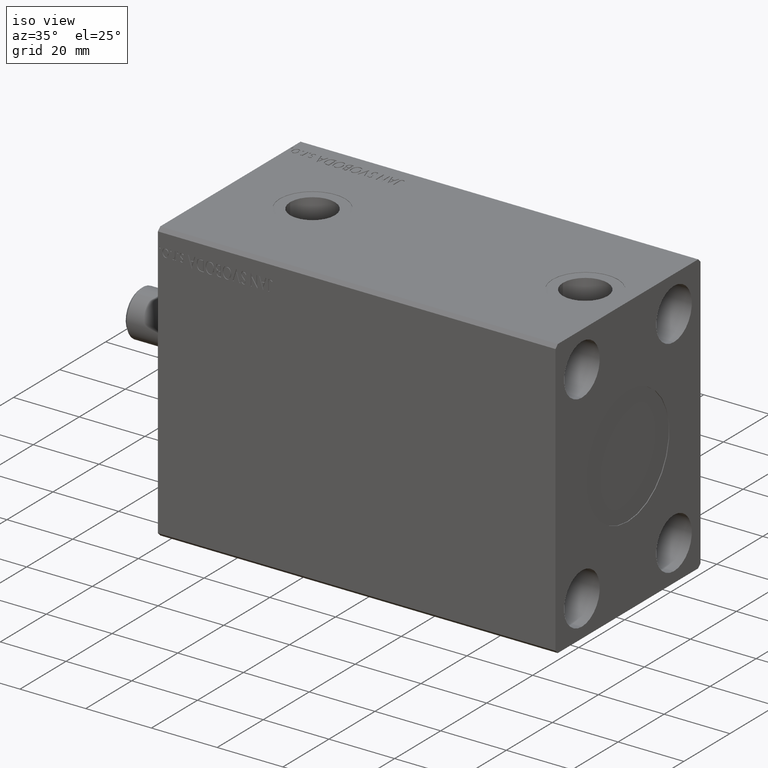
[diagram: clean part render]
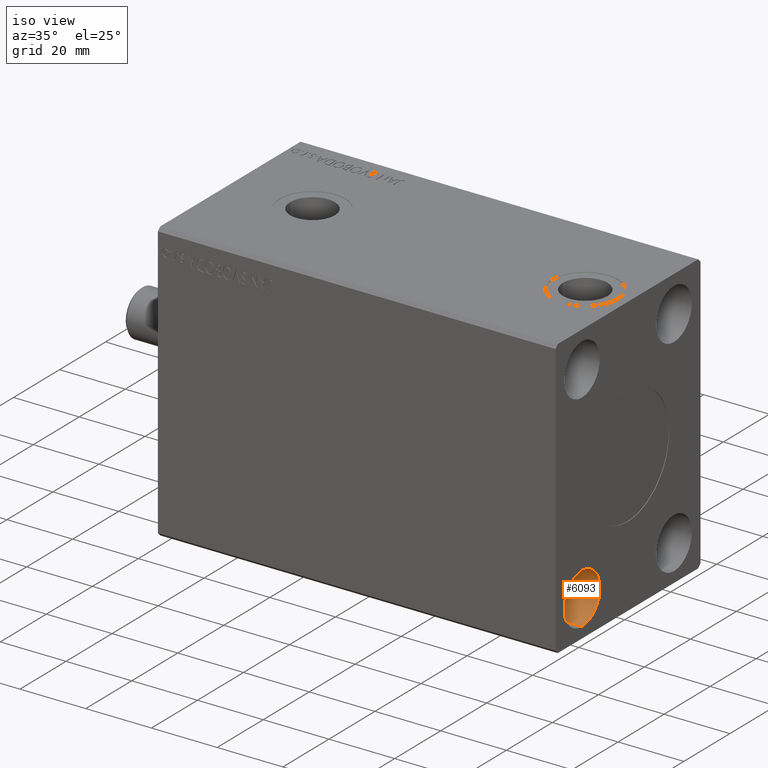
[diagram: same view with one face highlighted and labeled with its STEP entity id]
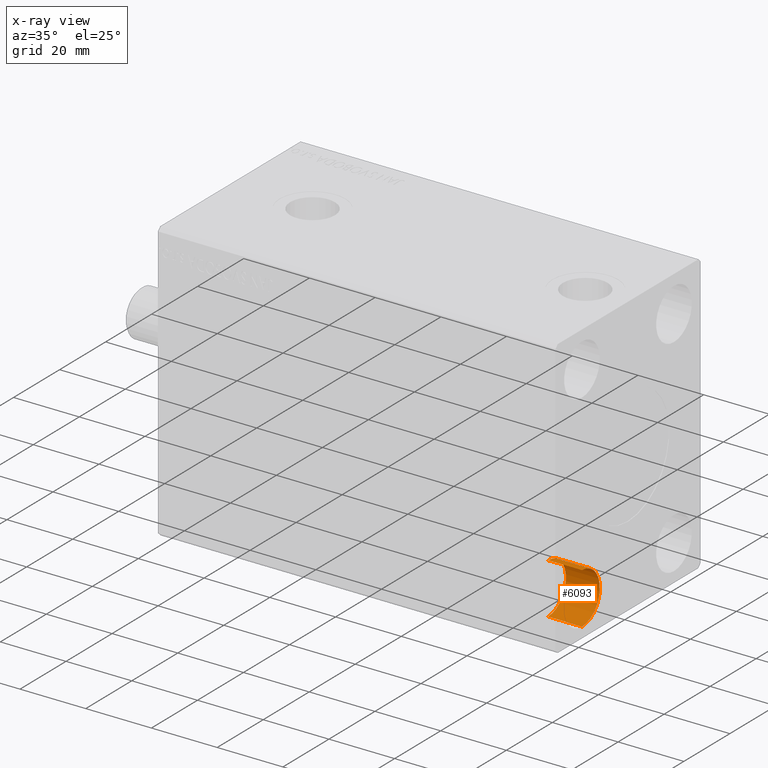
[diagram: x-ray of the same camera — body ghosted, the highlighted face saturated]
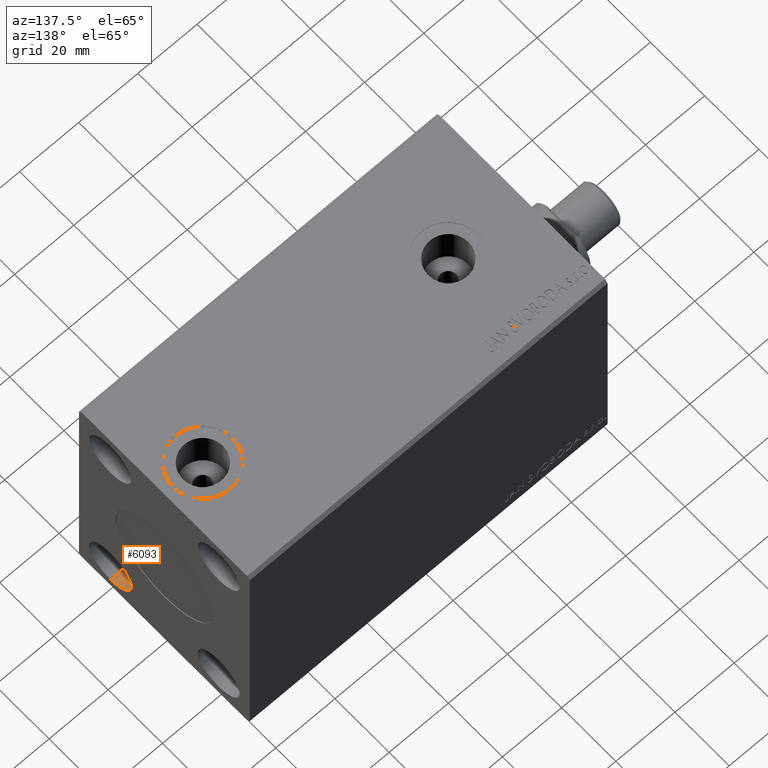
[diagram: same view with one face highlighted and labeled with its STEP entity id]
A machine part, iso view. The second image highlights one B-rep face of the part: STEP entity #6093.
The next image is the same camera in x-ray: the body ghosted, the highlighted face saturated — about 0% of this face is hidden behind the body in this view.
A second angle (auxiliary view) of the same face is appended — the face is thin or edge-on in the first view.
In plain terms, the highlighted cylindrical surface (edge-blend (fillet) strip) has radius 7.75 mm, axis along (1, 0, 0).
Its self-contained STEP definition (entity closure, byte-faithful):
#533 = EDGE_CURVE ( 'NONE', #19404, #16672, #11035, .T. ) ;
#1085 = CARTESIAN_POINT ( 'NONE',  ( 110.6699999999999875, -19.99999999999999645, -23.74999999999998579 ) ) ;
#1906 = VECTOR ( 'NONE', #21515, 1000.000000000000000 ) ;
#2566 = ORIENTED_EDGE ( 'NONE', *, *, #533, .T. ) ;
#4574 = FACE_OUTER_BOUND ( 'NONE', #41842, .T. ) ;
#5339 = CARTESIAN_POINT ( 'NONE',  ( 121.0000000000000000, -19.99999999999999645, -23.74999999999998579 ) ) ;
#6093 = ADVANCED_FACE ( 'NONE', ( #4574 ), #18481, .F. ) ;
#9075 = EDGE_CURVE ( 'NONE', #30782, #16672, #31773, .T. ) ;
#9591 = AXIS2_PLACEMENT_3D ( 'NONE', #17617, #14438, #35172 ) ;
#9775 = DIRECTION ( 'NONE',  ( 1.000000000000000000, -0.000000000000000000, -0.000000000000000000 ) ) ;
#10213 = CARTESIAN_POINT ( 'NONE',  ( 110.6699999999999875, -19.99999999999999645, -39.24999999999998579 ) ) ;
#11035 = CIRCLE ( 'NONE', #9591, 7.750000000000000000 ) ;
#11523 = ORIENTED_EDGE ( 'NONE', *, *, #22609, .F. ) ;
#11866 = CARTESIAN_POINT ( 'NONE',  ( 110.6699999999999875, -19.99999999999999645, -31.49999999999998579 ) ) ;
#14438 = DIRECTION ( 'NONE',  ( 1.000000000000000000, -0.000000000000000000, -0.000000000000000000 ) ) ;
#16672 = VERTEX_POINT ( 'NONE', #5339 ) ;
#17617 = CARTESIAN_POINT ( 'NONE',  ( 121.0000000000000000, -19.99999999999999645, -31.49999999999998579 ) ) ;
#17667 = VERTEX_POINT ( 'NONE', #22393 ) ;
#17761 = CIRCLE ( 'NONE', #32342, 7.750000000000000000 ) ;
#18481 = CYLINDRICAL_SURFACE ( 'NONE', #19177, 7.750000000000000000 ) ;
#19177 = AXIS2_PLACEMENT_3D ( 'NONE', #11866, #31926, #43118 ) ;
#19404 = VERTEX_POINT ( 'NONE', #39354 ) ;
#20248 = VECTOR ( 'NONE', #9775, 1000.000000000000000 ) ;
#20681 = DIRECTION ( 'NONE',  ( 0.000000000000000000, 0.000000000000000000, -1.000000000000000000 ) ) ;
#21515 = DIRECTION ( 'NONE',  ( 1.000000000000000000, -0.000000000000000000, -0.000000000000000000 ) ) ;
#22215 = ORIENTED_EDGE ( 'NONE', *, *, #36003, .T. ) ;
#22393 = CARTESIAN_POINT ( 'NONE',  ( 110.6699999999999875, -19.99999999999999645, -39.24999999999998579 ) ) ;
#22609 = EDGE_CURVE ( 'NONE', #17667, #30782, #17761, .T. ) ;
#24176 = ORIENTED_EDGE ( 'NONE', *, *, #9075, .F. ) ;
#27958 = CARTESIAN_POINT ( 'NONE',  ( 110.6699999999999875, -19.99999999999999645, -31.49999999999998579 ) ) ;
#30782 = VERTEX_POINT ( 'NONE', #1085 ) ;
#31773 = LINE ( 'NONE', #42515, #1906 ) ;
#31926 = DIRECTION ( 'NONE',  ( 1.000000000000000000, -0.000000000000000000, -0.000000000000000000 ) ) ;
#32342 = AXIS2_PLACEMENT_3D ( 'NONE', #27958, #34799, #20681 ) ;
#34799 = DIRECTION ( 'NONE',  ( 1.000000000000000000, -0.000000000000000000, -0.000000000000000000 ) ) ;
#35172 = DIRECTION ( 'NONE',  ( 0.000000000000000000, 0.000000000000000000, -1.000000000000000000 ) ) ;
#36003 = EDGE_CURVE ( 'NONE', #17667, #19404, #41467, .T. ) ;
#39354 = CARTESIAN_POINT ( 'NONE',  ( 121.0000000000000000, -19.99999999999999645, -39.24999999999998579 ) ) ;
#41467 = LINE ( 'NONE', #10213, #20248 ) ;
#41842 = EDGE_LOOP ( 'NONE', ( #24176, #11523, #22215, #2566 ) ) ;
#42515 = CARTESIAN_POINT ( 'NONE',  ( 110.6699999999999875, -19.99999999999999645, -23.74999999999998579 ) ) ;
#43118 = DIRECTION ( 'NONE',  ( 0.000000000000000000, 0.000000000000000000, -1.000000000000000000 ) ) ;